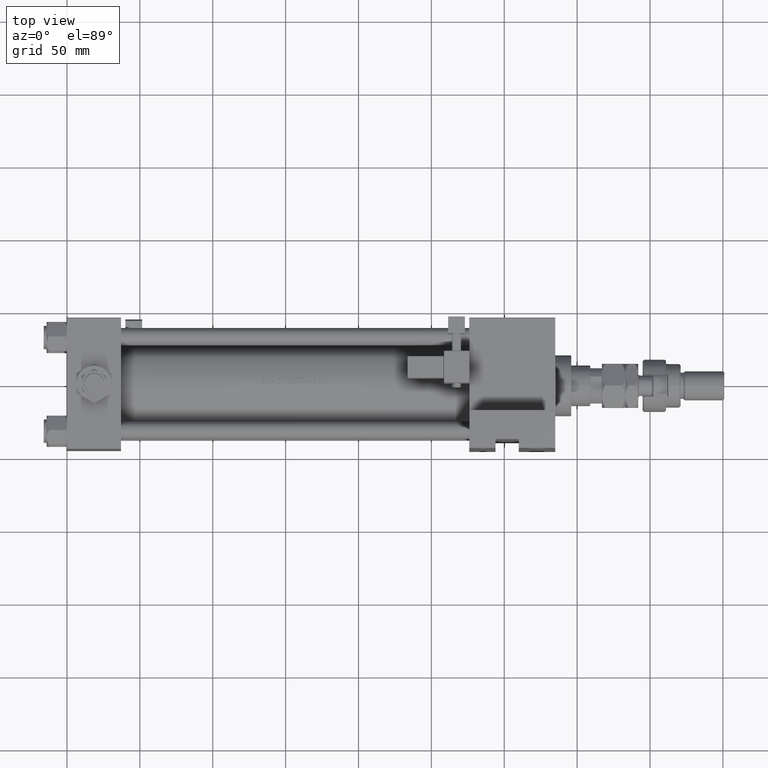
[diagram: clean part render]
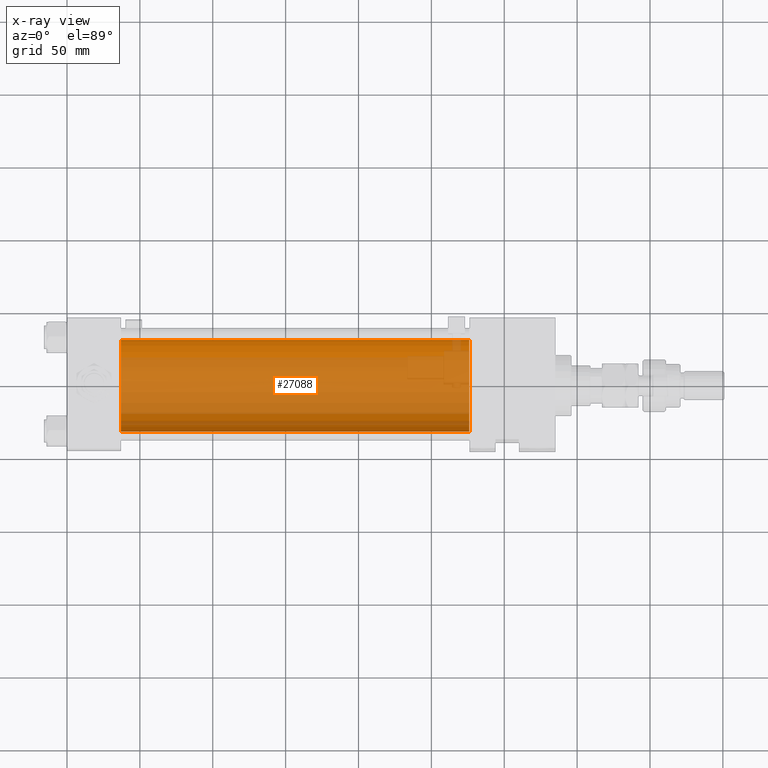
[diagram: x-ray — body ghosted, one internal face saturated and labeled with its STEP entity id]
A machine part, top view, then the same camera in x-ray: the body is ghosted and one INTERNAL B-rep face — a face not visible from any outside direction — is saturated and labeled: STEP entity #27088.
In plain terms, the highlighted cylindrical surface (partial cylindrical patch) has radius 31.5 mm, axis along (-1, -0, 0).
Its self-contained STEP definition (entity closure, byte-faithful):
#2546 = LINE ( 'NONE', #39778, #21797 ) ;
#5538 = DIRECTION ( 'NONE',  ( -1.000000000000000000, -0.000000000000000000, -0.000000000000000000 ) ) ;
#6625 = CYLINDRICAL_SURFACE ( 'NONE', #6999, 31.50000000000000000 ) ;
#6999 = AXIS2_PLACEMENT_3D ( 'NONE', #43867, #5538, #47443 ) ;
#9183 = EDGE_CURVE ( 'NONE', #52724, #9457, #29337, .T. ) ;
#9274 = DIRECTION ( 'NONE',  ( 0.000000000000000000, 0.000000000000000000, -1.000000000000000000 ) ) ;
#9457 = VERTEX_POINT ( 'NONE', #54492 ) ;
#11059 = CARTESIAN_POINT ( 'NONE',  ( 37.00000000000000000, 3.857637417314161900E-15, -32.50000000000000711 ) ) ;
#13423 = CARTESIAN_POINT ( 'NONE',  ( 275.9999999999999432, 0.000000000000000000, -1.000000000000007772 ) ) ;
#16822 = CARTESIAN_POINT ( 'NONE',  ( 37.00000000000000000, 0.000000000000000000, -1.000000000000007772 ) ) ;
#17184 = VERTEX_POINT ( 'NONE', #40031 ) ;
#21797 = VECTOR ( 'NONE', #31273, 1000.000000000000000 ) ;
#25702 = FACE_OUTER_BOUND ( 'NONE', #36154, .T. ) ;
#27088 = ADVANCED_FACE ( 'NONE', ( #25702 ), #6625, .F. ) ;
#27589 = ORIENTED_EDGE ( 'NONE', *, *, #48321, .F. ) ;
#28992 = DIRECTION ( 'NONE',  ( 1.000000000000000000, 0.000000000000000000, 0.000000000000000000 ) ) ;
#29071 = CARTESIAN_POINT ( 'NONE',  ( 275.9999999999999432, 0.000000000000000000, 30.49999999999999289 ) ) ;
#29337 = LINE ( 'NONE', #29071, #46166 ) ;
#30541 = DIRECTION ( 'NONE',  ( 1.000000000000000000, 0.000000000000000000, 0.000000000000000000 ) ) ;
#30614 = CIRCLE ( 'NONE', #45575, 31.50000000000000000 ) ;
#31273 = DIRECTION ( 'NONE',  ( -1.000000000000000000, -0.000000000000000000, -0.000000000000000000 ) ) ;
#34010 = DIRECTION ( 'NONE',  ( -1.000000000000000000, -0.000000000000000000, -0.000000000000000000 ) ) ;
#35352 = VERTEX_POINT ( 'NONE', #11059 ) ;
#36154 = EDGE_LOOP ( 'NONE', ( #27589, #39913, #42709, #40797 ) ) ;
#39697 = EDGE_CURVE ( 'NONE', #35352, #9457, #53923, .T. ) ;
#39778 = CARTESIAN_POINT ( 'NONE',  ( 275.9999999999999432, 3.857637417314161900E-15, -32.50000000000000711 ) ) ;
#39913 = ORIENTED_EDGE ( 'NONE', *, *, #52090, .T. ) ;
#40031 = CARTESIAN_POINT ( 'NONE',  ( 275.9999999999999432, 3.857637417314161900E-15, -32.50000000000000711 ) ) ;
#40797 = ORIENTED_EDGE ( 'NONE', *, *, #39697, .F. ) ;
#42709 = ORIENTED_EDGE ( 'NONE', *, *, #9183, .T. ) ;
#43867 = CARTESIAN_POINT ( 'NONE',  ( 275.9999999999999432, 0.000000000000000000, -1.000000000000007772 ) ) ;
#44626 = CARTESIAN_POINT ( 'NONE',  ( 275.9999999999999432, 0.000000000000000000, 30.49999999999999289 ) ) ;
#45575 = AXIS2_PLACEMENT_3D ( 'NONE', #13423, #30541, #9274 ) ;
#46166 = VECTOR ( 'NONE', #34010, 1000.000000000000000 ) ;
#47443 = DIRECTION ( 'NONE',  ( 0.000000000000000000, 0.000000000000000000, 1.000000000000000000 ) ) ;
#48321 = EDGE_CURVE ( 'NONE', #17184, #35352, #2546, .T. ) ;
#49619 = DIRECTION ( 'NONE',  ( 0.000000000000000000, 0.000000000000000000, -1.000000000000000000 ) ) ;
#51292 = AXIS2_PLACEMENT_3D ( 'NONE', #16822, #28992, #49619 ) ;
#52090 = EDGE_CURVE ( 'NONE', #17184, #52724, #30614, .T. ) ;
#52724 = VERTEX_POINT ( 'NONE', #44626 ) ;
#53923 = CIRCLE ( 'NONE', #51292, 31.50000000000000000 ) ;
#54492 = CARTESIAN_POINT ( 'NONE',  ( 37.00000000000000000, 0.000000000000000000, 30.49999999999999289 ) ) ;